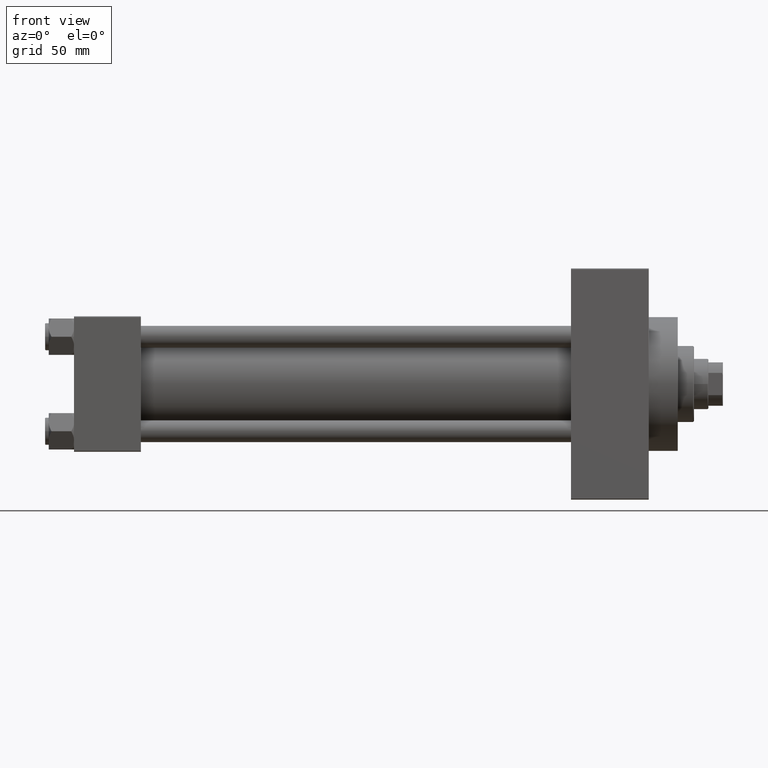
[diagram: clean part render]
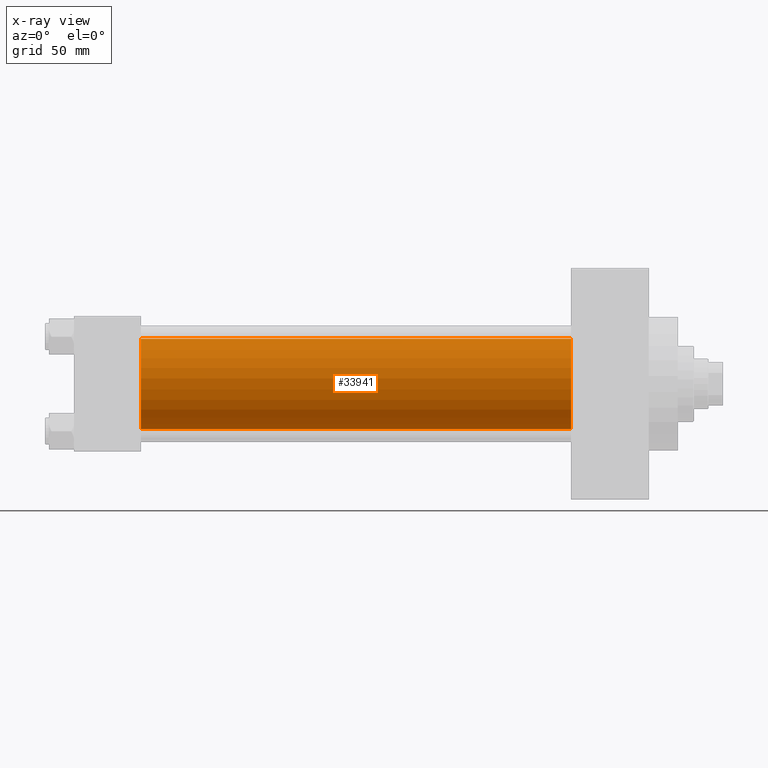
[diagram: x-ray — body ghosted, one internal face saturated and labeled with its STEP entity id]
A machine part, front view, then the same camera in x-ray: the body is ghosted and one INTERNAL B-rep face — a face not visible from any outside direction — is saturated and labeled: STEP entity #33941.
In plain terms, the highlighted cylindrical surface (partial cylindrical patch) has radius 25 mm, axis along (-1, -0, -0).
Its self-contained STEP definition (entity closure, byte-faithful):
#1094 = ORIENTED_EDGE ( 'NONE', *, *, #8430, .F. ) ;
#2041 = CIRCLE ( 'NONE', #29908, 25.00000000000000000 ) ;
#3695 = VECTOR ( 'NONE', #30610, 1000.000000000000000 ) ;
#3924 = CARTESIAN_POINT ( 'NONE',  ( 274.9999999999999432, -2.602085213965210642E-15, 25.00000000000000000 ) ) ;
#5586 = DIRECTION ( 'NONE',  ( 0.000000000000000000, 0.000000000000000000, -1.000000000000000000 ) ) ;
#5596 = DIRECTION ( 'NONE',  ( 1.000000000000000000, 0.000000000000000000, 0.000000000000000000 ) ) ;
#5829 = CARTESIAN_POINT ( 'NONE',  ( 274.9999999999999432, -2.602085213965210642E-15, 0.000000000000000000 ) ) ;
#6170 = FACE_OUTER_BOUND ( 'NONE', #6506, .T. ) ;
#6506 = EDGE_LOOP ( 'NONE', ( #19048, #19916, #1094, #46792 ) ) ;
#7680 = VERTEX_POINT ( 'NONE', #22510 ) ;
#8430 = EDGE_CURVE ( 'NONE', #17924, #7680, #32808, .T. ) ;
#9176 = CARTESIAN_POINT ( 'NONE',  ( 274.9999999999999432, -2.602085213965210642E-15, 0.000000000000000000 ) ) ;
#11535 = VECTOR ( 'NONE', #43018, 1000.000000000000000 ) ;
#12901 = DIRECTION ( 'NONE',  ( -1.000000000000000000, -0.000000000000000000, -0.000000000000000000 ) ) ;
#14285 = CARTESIAN_POINT ( 'NONE',  ( 37.00000000000000000, -2.602085213965210642E-15, 0.000000000000000000 ) ) ;
#15911 = CARTESIAN_POINT ( 'NONE',  ( 37.00000000000000000, -2.602085213965210642E-15, 25.00000000000000000 ) ) ;
#17924 = VERTEX_POINT ( 'NONE', #15911 ) ;
#19048 = ORIENTED_EDGE ( 'NONE', *, *, #44006, .T. ) ;
#19223 = EDGE_CURVE ( 'NONE', #20187, #17924, #27826, .T. ) ;
#19489 = VERTEX_POINT ( 'NONE', #35253 ) ;
#19851 = AXIS2_PLACEMENT_3D ( 'NONE', #9176, #12901, #24367 ) ;
#19916 = ORIENTED_EDGE ( 'NONE', *, *, #41924, .T. ) ;
#20187 = VERTEX_POINT ( 'NONE', #3924 ) ;
#22510 = CARTESIAN_POINT ( 'NONE',  ( 37.00000000000000000, 4.595317839031724996E-16, -25.00000000000000000 ) ) ;
#24367 = DIRECTION ( 'NONE',  ( 0.000000000000000000, 0.000000000000000000, 1.000000000000000000 ) ) ;
#26446 = AXIS2_PLACEMENT_3D ( 'NONE', #14285, #5596, #47960 ) ;
#27826 = LINE ( 'NONE', #31326, #11535 ) ;
#29908 = AXIS2_PLACEMENT_3D ( 'NONE', #5829, #44201, #5586 ) ;
#30610 = DIRECTION ( 'NONE',  ( -1.000000000000000000, -0.000000000000000000, -0.000000000000000000 ) ) ;
#31326 = CARTESIAN_POINT ( 'NONE',  ( 274.9999999999999432, -2.602085213965210642E-15, 25.00000000000000000 ) ) ;
#31858 = CYLINDRICAL_SURFACE ( 'NONE', #19851, 25.00000000000000000 ) ;
#32808 = CIRCLE ( 'NONE', #26446, 25.00000000000000000 ) ;
#33941 = ADVANCED_FACE ( 'NONE', ( #6170 ), #31858, .F. ) ;
#35253 = CARTESIAN_POINT ( 'NONE',  ( 274.9999999999999432, 4.595317839031724996E-16, -25.00000000000000000 ) ) ;
#41924 = EDGE_CURVE ( 'NONE', #19489, #7680, #48819, .T. ) ;
#42327 = CARTESIAN_POINT ( 'NONE',  ( 274.9999999999999432, 4.595317839031724996E-16, -25.00000000000000000 ) ) ;
#43018 = DIRECTION ( 'NONE',  ( -1.000000000000000000, -0.000000000000000000, -0.000000000000000000 ) ) ;
#44006 = EDGE_CURVE ( 'NONE', #20187, #19489, #2041, .T. ) ;
#44201 = DIRECTION ( 'NONE',  ( 1.000000000000000000, 0.000000000000000000, 0.000000000000000000 ) ) ;
#46792 = ORIENTED_EDGE ( 'NONE', *, *, #19223, .F. ) ;
#47960 = DIRECTION ( 'NONE',  ( 0.000000000000000000, 0.000000000000000000, -1.000000000000000000 ) ) ;
#48819 = LINE ( 'NONE', #42327, #3695 ) ;